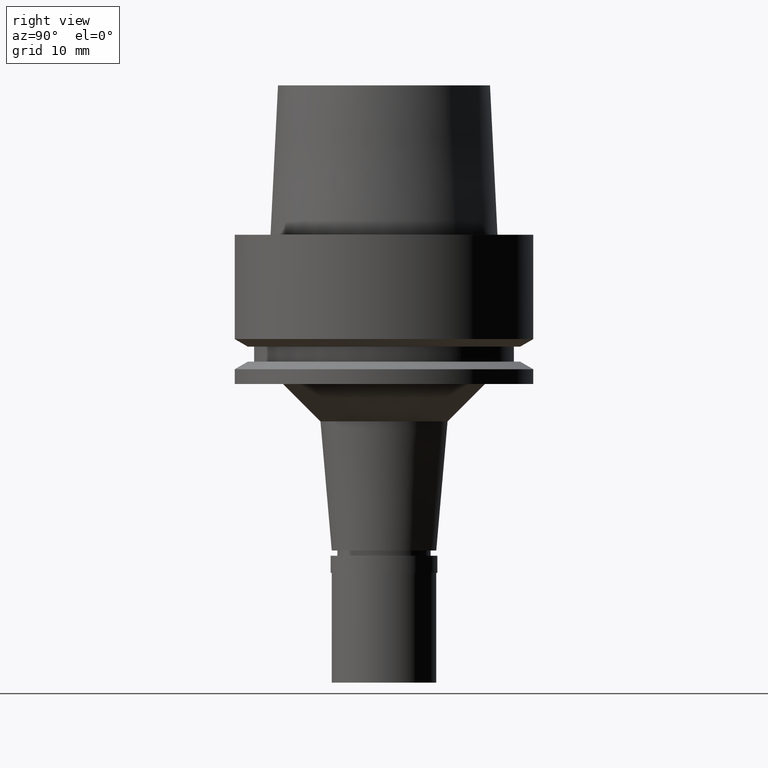
[diagram: clean part render]
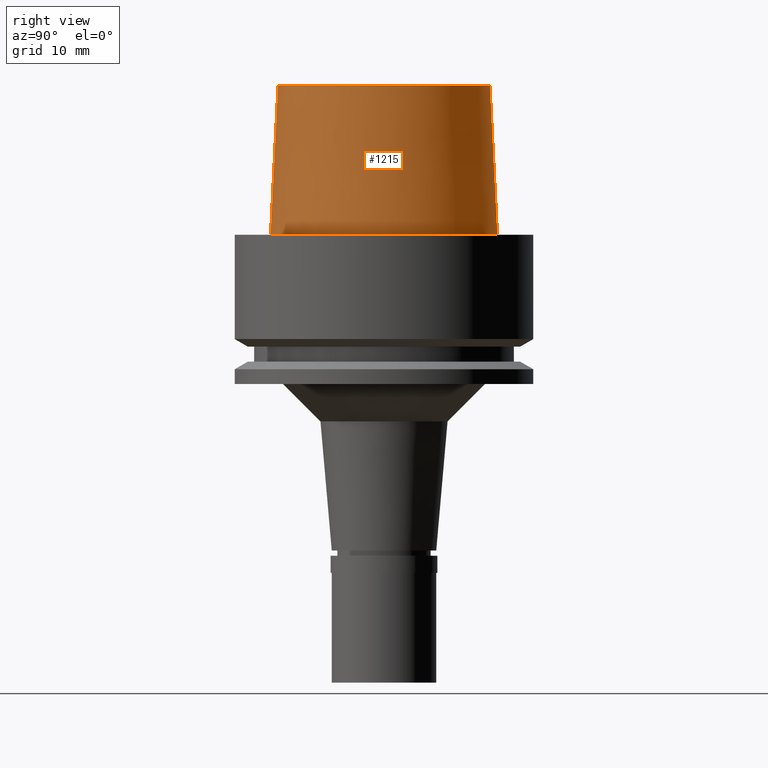
[diagram: same view with one face highlighted and labeled with its STEP entity id]
A machine part, right view. The second image highlights one B-rep face of the part: STEP entity #1215.
In plain terms, the highlighted conical surface has half-angle 2.862 deg.
Its self-contained STEP definition (entity closure, byte-faithful):
#93 = AXIS2_PLACEMENT_3D ( 'NONE', #1296, #2114, #1700 ) ;
#132 = DIRECTION ( 'NONE',  ( 0.0000000000000000000, 0.0000000000000000000, 1.000000000000000000 ) ) ;
#138 = LINE ( 'NONE', #985, #1546 ) ;
#382 = VERTEX_POINT ( 'NONE', #2357 ) ;
#427 = DIRECTION ( 'NONE',  ( 0.0000000000000000000, 1.000000000000000000, 0.0000000000000000000 ) ) ;
#515 = ORIENTED_EDGE ( 'NONE', *, *, #2482, .T. ) ;
#570 = FACE_OUTER_BOUND ( 'NONE', #2555, .T. ) ;
#765 = VERTEX_POINT ( 'NONE', #800 ) ;
#800 = CARTESIAN_POINT ( 'NONE',  ( 0.0000000000000000000, -14.20000146305999955, 20.00000000000000000 ) ) ;
#904 = CARTESIAN_POINT ( 'NONE',  ( 0.0000000000000000000, 0.0000000000000000000, 20.00000000000000000 ) ) ;
#985 = CARTESIAN_POINT ( 'NONE',  ( 0.0000000000000000000, 14.20000146305999955, 20.00000000000000000 ) ) ;
#1037 = VECTOR ( 'NONE', #1103, 999.9999999999998863 ) ;
#1085 = EDGE_CURVE ( 'NONE', #2091, #1805, #138, .T. ) ;
#1103 = DIRECTION ( 'NONE',  ( 0.0000000000000000000, -0.04993752584496928548, -0.9987523434327867378 ) ) ;
#1215 = ADVANCED_FACE ( 'NONE', ( #570 ), #1927, .T. ) ;
#1296 = CARTESIAN_POINT ( 'NONE',  ( 0.0000000000000000000, 0.0000000000000000000, 10.00000000000000000 ) ) ;
#1307 = ORIENTED_EDGE ( 'NONE', *, *, #1787, .T. ) ;
#1398 = DIRECTION ( 'NONE',  ( 0.0000000000000000000, 0.04993752584496928548, -0.9987523434327867378 ) ) ;
#1402 = ORIENTED_EDGE ( 'NONE', *, *, #2042, .T. ) ;
#1546 = VECTOR ( 'NONE', #1398, 999.9999999999998863 ) ;
#1548 = AXIS2_PLACEMENT_3D ( 'NONE', #904, #2536, #427 ) ;
#1615 = DIRECTION ( 'NONE',  ( 0.0000000000000000000, -1.000000000000000000, 0.0000000000000000000 ) ) ;
#1700 = DIRECTION ( 'NONE',  ( 0.0000000000000000000, -1.000000000000000000, 0.0000000000000000000 ) ) ;
#1732 = LINE ( 'NONE', #2120, #1037 ) ;
#1735 = ORIENTED_EDGE ( 'NONE', *, *, #1085, .F. ) ;
#1787 = EDGE_CURVE ( 'NONE', #2091, #765, #2024, .T. ) ;
#1805 = VERTEX_POINT ( 'NONE', #2145 ) ;
#1927 = CONICAL_SURFACE ( 'NONE', #93, 14.70000054865000116, 0.04995830450907576964 ) ;
#2024 = CIRCLE ( 'NONE', #1548, 14.20000146305999955 ) ;
#2042 = EDGE_CURVE ( 'NONE', #765, #382, #1732, .T. ) ;
#2091 = VERTEX_POINT ( 'NONE', #2541 ) ;
#2114 = DIRECTION ( 'NONE',  ( 0.0000000000000000000, 0.0000000000000000000, -1.000000000000000000 ) ) ;
#2120 = CARTESIAN_POINT ( 'NONE',  ( 0.0000000000000000000, -14.20000146305999955, 20.00000000000000000 ) ) ;
#2145 = CARTESIAN_POINT ( 'NONE',  ( 0.0000000000000000000, 15.19999963424000100, 3.801403636316999971E-13 ) ) ;
#2198 = CIRCLE ( 'NONE', #2325, 15.19999963424000100 ) ;
#2325 = AXIS2_PLACEMENT_3D ( 'NONE', #2469, #132, #1615 ) ;
#2357 = CARTESIAN_POINT ( 'NONE',  ( 0.0000000000000000000, -15.19999963424000100, 3.801403636316999971E-13 ) ) ;
#2469 = CARTESIAN_POINT ( 'NONE',  ( 0.0000000000000000000, 0.0000000000000000000, 6.821210263297000155E-13 ) ) ;
#2482 = EDGE_CURVE ( 'NONE', #382, #1805, #2198, .T. ) ;
#2536 = DIRECTION ( 'NONE',  ( 0.0000000000000000000, 0.0000000000000000000, -1.000000000000000000 ) ) ;
#2541 = CARTESIAN_POINT ( 'NONE',  ( 0.0000000000000000000, 14.20000146305999955, 20.00000000000000000 ) ) ;
#2555 = EDGE_LOOP ( 'NONE', ( #1307, #1402, #515, #1735 ) ) ;